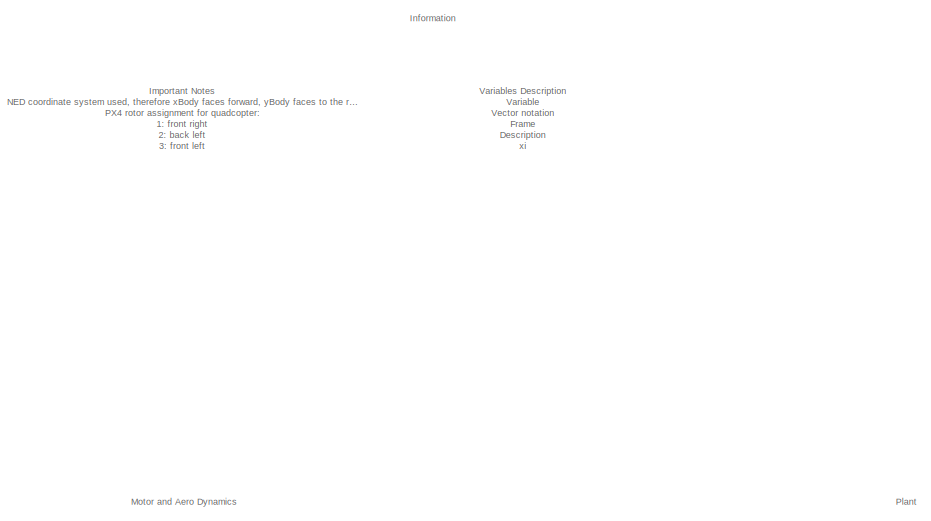
[diagram: root canvas - part 1/5, top right region]
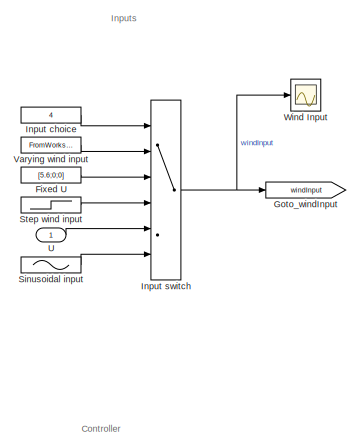
[diagram: root canvas - part 2/5, top left region]
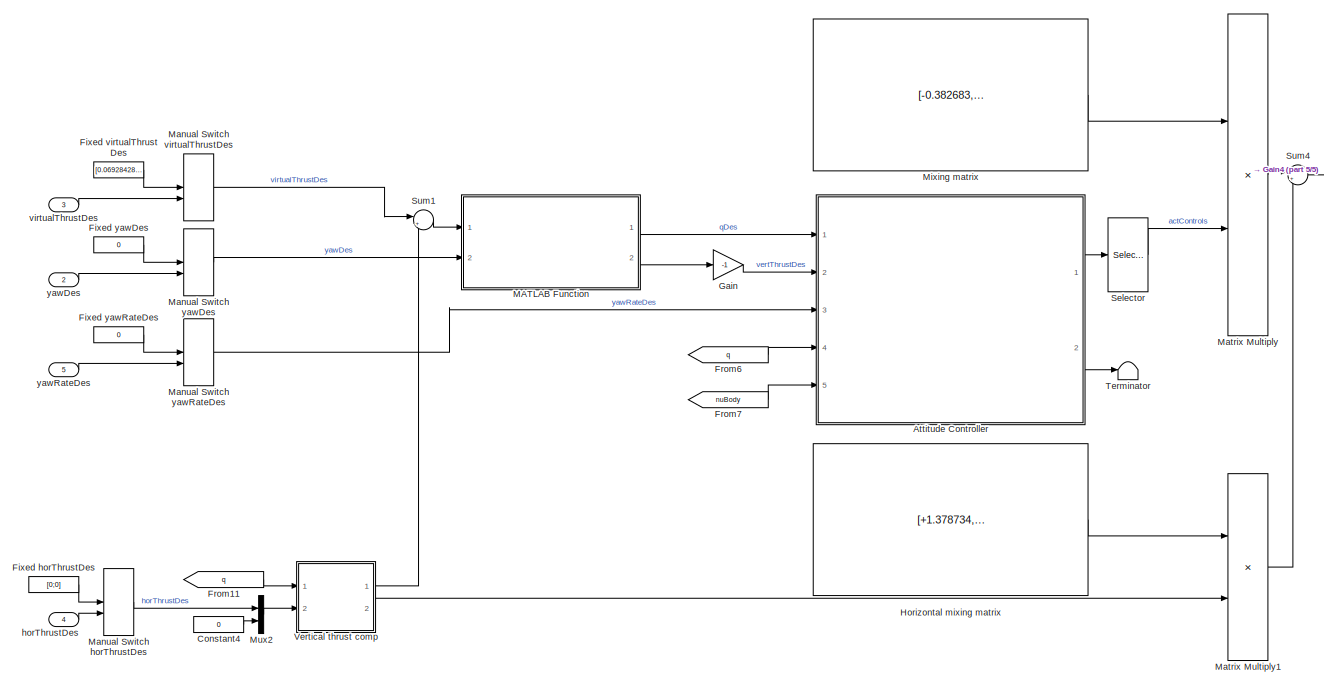
[diagram: root canvas - part 3/5, bottom left region]
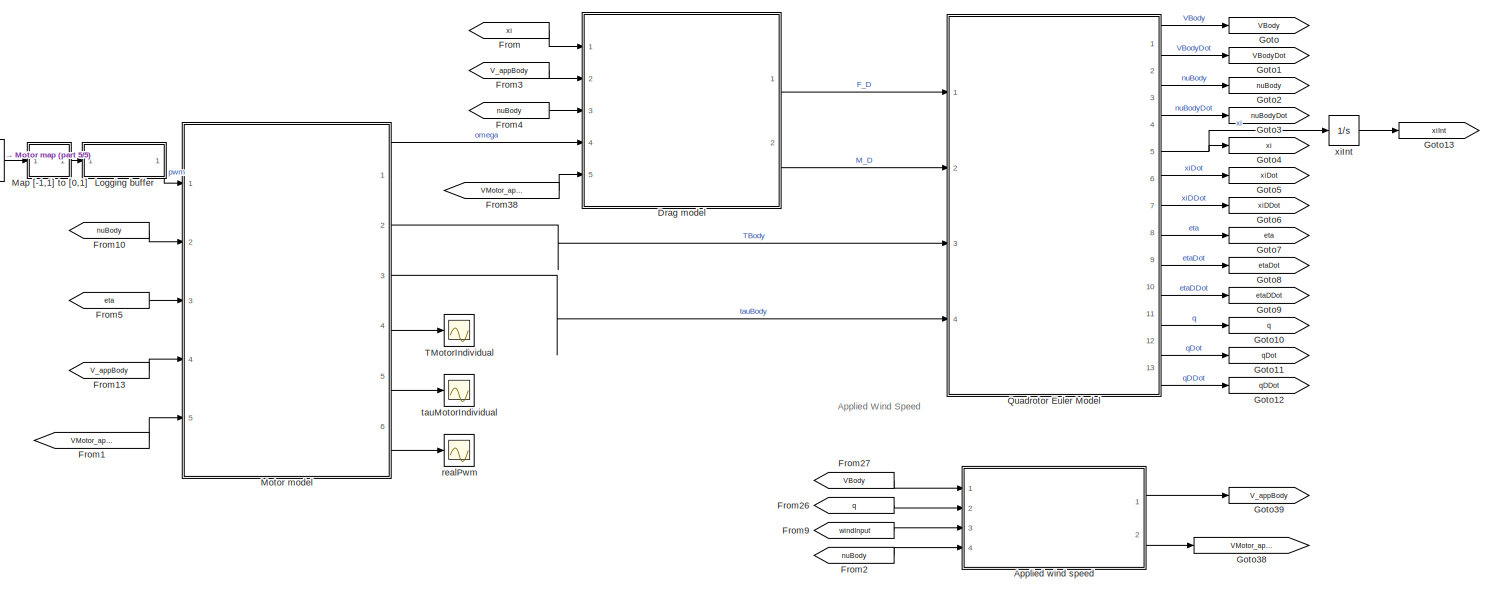
[diagram: root canvas - part 4/5, bottom right region]
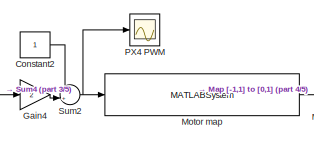
[diagram: root canvas - part 5/5, central region]
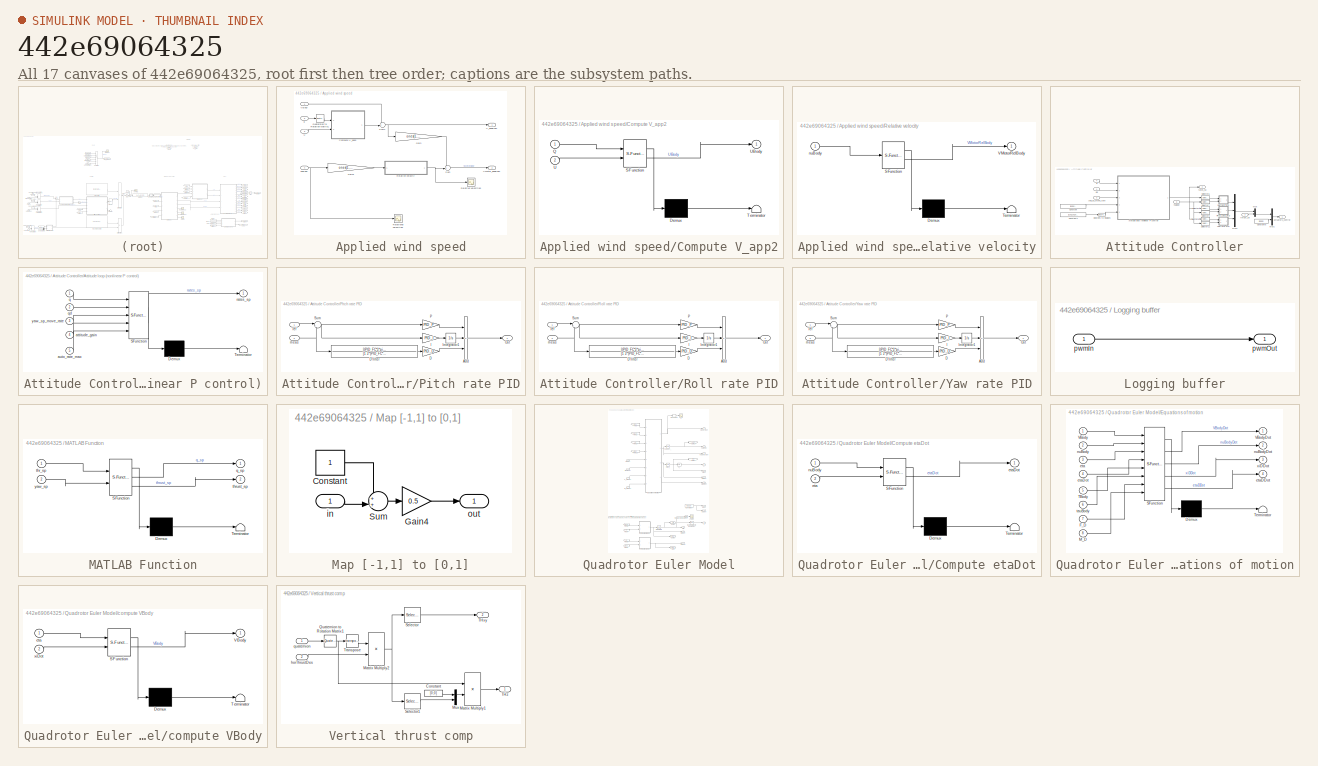
[diagram: thumbnail index - all 17 canvases of the model, root first then tree order]
MODEL slx_442e69064325
KIND model
CONFIG AbsTol = auto
CONFIG EnableMultiTasking = on
CONFIG FixedStep = auto
CONFIG MaxStep = Simulation.TS_MAX
CONFIG MinStep = auto
CONFIG PreLoadFcn = % InitializeParameters;
CONFIG RelTol = 1e-3
CONFIG SampleTimeConstraint = Unconstrained
CONFIG SolverName = VariableStepAuto
CONFIG StartTime = 0.0
CONFIG StopTime = Simulation.T_END
BLOCK [SubSystem] Applied wind speed
  Ports = [4, 2]
  RequestExecContextInheritance = off
BLOCK [SubSystem] Applied wind speed/Compute V_app2
  ErrorFcn = Stateflow.Translate.translate
  PermitHierarchicalResolution = ExplicitOnly
  Ports = [2, 1]
  RequestExecContextInheritance = off
  SFBlockType = MATLAB Function
  TreatAsAtomicUnit = on
BLOCK [Demux] Applied wind speed/Compute V_app2/ Demux 
  Outputs = 1
  Ports = [1, 1]
BLOCK [S-Function] Applied wind speed/Compute V_app2/ SFunction 
  EnableBusSupport = on
  FunctionName = sf_sfun
  PortCounts = [2 2]
  Ports = [2, 2]
  SFcnIsStateOwnerBlock = off
  SFunctionDeploymentMode = off
  Tag = Stateflow S-Function 5
BLOCK [Terminator] Applied wind speed/Compute V_app2/ Terminator 
BLOCK [Inport] Applied wind speed/Compute V_app2/Q
BLOCK [Inport] Applied wind speed/Compute V_app2/U
  Port = 2
BLOCK [Outport] Applied wind speed/Compute V_app2/UBody
  VectorParamsAs1DForOutWhenUnconnected = off
BLOCK [Gain] Applied wind speed/Gain
  Gain = ones(1,Uav.N_ROTORS)
  Multiplication = Matrix(u*K)
BLOCK [Gain] Applied wind speed/Gain1
  Gain = ones(1,Uav.N_ROTORS)
  Multiplication = Matrix(u*K)
BLOCK [Reference] Applied wind speed/Quaternion to Rotation Matrix1  REF=QuaternionLibrary/Quaternion
to Rotation Matrix
  Ports = [1, 1]
  SourceBlock = QuaternionLibrary/Quaternion\nto Rotation Matrix
BLOCK [Scope] Applied wind speed/Relative velocities
  Floating = off
  NumInputPorts = 1
  Ports = [1]
  ScopeSpecificationString = Simulink.scopes.TimeScopeBlockCfg('CurrentConfiguration', extmgr.ConfigurationSet(extmgr.Configuration('Core','General UI',true),extmgr.Configuration('Core','Source UI',true),extmgr.Configuration('Sources','WiredSimulink',true,'DataLoggingVariableName','ScopeData7'),extmgr.Configuration('Visuals','Time Domain',true,'SerializedDisplays',{struct('MinYLimReal','-0.10082','MaxYLimReal','0.10082','YLab...<+1971ch>
BLOCK [SubSystem] Applied wind speed/Relative velocity
  ErrorFcn = Stateflow.Translate.translate
  PermitHierarchicalResolution = ExplicitOnly
  Ports = [1, 1]
  RequestExecContextInheritance = off
  SFBlockType = MATLAB Function
  TreatAsAtomicUnit = on
BLOCK [Demux] Applied wind speed/Relative velocity/ Demux 
  Outputs = 1
  Ports = [1, 1]
BLOCK [S-Function] Applied wind speed/Relative velocity/ SFunction 
  EnableBusSupport = on
  FunctionName = sf_sfun
  Parameters = Uav
  PortCounts = [1 2]
  Ports = [1, 2]
  SFcnIsStateOwnerBlock = off
  SFunctionDeploymentMode = off
  Tag = Stateflow S-Function 4
BLOCK [Terminator] Applied wind speed/Relative velocity/ Terminator 
BLOCK [Outport] Applied wind speed/Relative velocity/VMotorRelBody
  VectorParamsAs1DForOutWhenUnconnected = off
BLOCK [Inport] Applied wind speed/Relative velocity/nuBody
BLOCK [Scope] Applied wind speed/Rotational velocities
  Floating = off
  NumInputPorts = 1
  Ports = [1]
  ScopeSpecificationString = Simulink.scopes.TimeScopeBlockCfg('CurrentConfiguration', extmgr.ConfigurationSet(extmgr.Configuration('Core','General UI',true),extmgr.Configuration('Core','Source UI',true),extmgr.Configuration('Sources','WiredSimulink',true,'DataLoggingVariableName','ScopeData8'),extmgr.Configuration('Visuals','Time Domain',true,'SerializedDisplays',{struct('MinYLimReal','-0.22625','MaxYLimReal','0.41313','YLab...<+1461ch>
BLOCK [Sum] Applied wind speed/Sum
  Inputs = ++|
  Ports = [2, 1]
BLOCK [Sum] Applied wind speed/Sum1
  Inputs = ++|
  Ports = [2, 1]
BLOCK [Inport] Applied wind speed/U
  Port = 3
  Unit = m/s
BLOCK [Inport] Applied wind speed/VBody
  Unit = m/s
BLOCK [Outport] Applied wind speed/VMotor_appBody
  Port = 2
  PortDimensions = [3,Uav.N_ROTORS]
  Unit = m/s
  VectorParamsAs1DForOutWhenUnconnected = off
BLOCK [Outport] Applied wind speed/V_appBody
  Unit = m/s
  VectorParamsAs1DForOutWhenUnconnected = off
BLOCK [Inport] Applied wind speed/nuBody
  Port = 4
  Unit = rad/s
BLOCK [Inport] Applied wind speed/q
  Port = 2
BLOCK [SubSystem] Attitude Controller
  Ports = [5, 2]
  RequestExecContextInheritance = off
BLOCK [SubSystem] Attitude Controller/Attitude loop (nonlinear P control)
  ErrorFcn = Stateflow.Translate.translate
  PermitHierarchicalResolution = ExplicitOnly
  Ports = [5, 1]
  RequestExecContextInheritance = off
  SFBlockType = MATLAB Function
  TreatAsAtomicUnit = on
BLOCK [Demux] Attitude Controller/Attitude loop (nonlinear P control)/ Demux 
  Outputs = 1
  Ports = [1, 1]
BLOCK [S-Function] Attitude Controller/Attitude loop (nonlinear P control)/ SFunction 
  EnableBusSupport = on
  FunctionName = sf_sfun
  PortCounts = [5 2]
  Ports = [5, 2]
  SFcnIsStateOwnerBlock = off
  SFunctionDeploymentMode = off
  Tag = Stateflow S-Function 6
BLOCK [Terminator] Attitude Controller/Attitude loop (nonlinear P control)/ Terminator 
BLOCK [Inport] Attitude Controller/Attitude loop (nonlinear P control)/attitude_gain
  Port = 4
BLOCK [Inport] Attitude Controller/Attitude loop (nonlinear P control)/auto_rate_max
  Port = 5
BLOCK [Inport] Attitude Controller/Attitude loop (nonlinear P control)/q
BLOCK [Inport] Attitude Controller/Attitude loop (nonlinear P control)/qd
  Port = 2
BLOCK [Outport] Attitude Controller/Attitude loop (nonlinear P control)/rates_sp
  VectorParamsAs1DForOutWhenUnconnected = off
BLOCK [Inport] Attitude Controller/Attitude loop (nonlinear P control)/yaw_sp_move_rate
  Port = 3
BLOCK [Constant] Attitude Controller/Constant
  Value = [ 6.5; 6.5; 2.8]
BLOCK [Constant] Attitude Controller/Constant1
  Value = [220;220;200]
BLOCK [Constant] Attitude Controller/Constant5
  Value = [0;0;0;0]
BLOCK [Reference] Attitude Controller/Degrees to Radians  REF=simulink_extras/Transformations/Degrees to
Radians
  Ports = [1, 1]
  SourceBlock = simulink_extras/Transformations/Degrees to\nRadians
  SourceProductBaseCode = SL
  SourceType = DegreesToRadians
BLOCK [Mux] Attitude Controller/Mux
  DisplayOption = bar
  Inputs = 2
  Ports = [2, 1]
BLOCK [Mux] Attitude Controller/Mux1
  DisplayOption = bar
  Inputs = 2
  Ports = [2, 1]
BLOCK [Mux] Attitude Controller/Mux2
  DisplayOption = bar
  Inputs = 3
  Ports = [3, 1]
BLOCK [SubSystem] Attitude Controller/Pitch rate PID
  Ports = [2, 1]
  RequestExecContextInheritance = off
BLOCK [Sum] Attitude Controller/Pitch rate PID/Add
  IconShape = rectangular
  Inputs = ++-
  Ports = [3, 1]
BLOCK [Gain] Attitude Controller/Pitch rate PID/D
  Gain = PID_D
BLOCK [TransferFcn] Attitude Controller/Pitch rate PID/D filter
  ContinuousStateAttributes = PID_D_STATENAME
  Denominator = [1 2*(PID_FC*2*pi)*0.68  (PID_FC*2*pi)^2]
  Numerator = [(PID_FC*2*pi)^2 0]
BLOCK [Gain] Attitude Controller/Pitch rate PID/I
  Gain = PID_I
BLOCK [Integrator] Attitude Controller/Pitch rate PID/Integrator1
  ContinuousStateAttributes = PID_I_STATENAME
  LimitOutput = on
  LowerSaturationLimit = -0.3
  Ports = [1, 1]
  UpperSaturationLimit = 0.3
BLOCK [Outport] Attitude Controller/Pitch rate PID/Out
  VectorParamsAs1DForOutWhenUnconnected = off
BLOCK [Gain] Attitude Controller/Pitch rate PID/P
  Gain = PID_P
BLOCK [Sum] Attitude Controller/Pitch rate PID/Sum
  Inputs = |+-
  Ports = [2, 1]
BLOCK [Inport] Attitude Controller/Pitch rate PID/meas
  Port = 2
BLOCK [Inport] Attitude Controller/Pitch rate PID/ref
BLOCK [SubSystem] Attitude Controller/Roll rate PID
  Ports = [2, 1]
  RequestExecContextInheritance = off
BLOCK [Sum] Attitude Controller/Roll rate PID/Add
  IconShape = rectangular
  Inputs = ++-
  Ports = [3, 1]
BLOCK [Gain] Attitude Controller/Roll rate PID/D
  Gain = PID_D
BLOCK [TransferFcn] Attitude Controller/Roll rate PID/D filter
  ContinuousStateAttributes = PID_D_STATENAME
  Denominator = [1 2*(PID_FC*2*pi)*0.68  (PID_FC*2*pi)^2]
  Numerator = [(PID_FC*2*pi)^2 0]
BLOCK [Gain] Attitude Controller/Roll rate PID/I
  Gain = PID_I
BLOCK [Integrator] Attitude Controller/Roll rate PID/Integrator1
  ContinuousStateAttributes = PID_I_STATENAME
  LimitOutput = on
  LowerSaturationLimit = -0.3
  Ports = [1, 1]
  UpperSaturationLimit = 0.3
BLOCK [Outport] Attitude Controller/Roll rate PID/Out
  VectorParamsAs1DForOutWhenUnconnected = off
BLOCK [Gain] Attitude Controller/Roll rate PID/P
  Gain = PID_P
BLOCK [Sum] Attitude Controller/Roll rate PID/Sum
  Inputs = |+-
  Ports = [2, 1]
BLOCK [Inport] Attitude Controller/Roll rate PID/meas
  Port = 2
BLOCK [Inport] Attitude Controller/Roll rate PID/ref
BLOCK [Selector] Attitude Controller/Selector10
  IndexOptions = Index vector (dialog)
  Indices = 3
  InputPortWidth = 3
  OutputSizes = 1
  Ports = [1, 1]
BLOCK [Selector] Attitude Controller/Selector11
  IndexOptions = Index vector (dialog)
  Indices = 3
  InputPortWidth = 3
  OutputSizes = 1
  Ports = [1, 1]
BLOCK [Selector] Attitude Controller/Selector6
  IndexOptions = Index vector (dialog)
  Indices = 1
  InputPortWidth = 3
  OutputSizes = 1
  Ports = [1, 1]
BLOCK [Selector] Attitude Controller/Selector7
  IndexOptions = Index vector (dialog)
  Indices = 1
  InputPortWidth = 3
  OutputSizes = 1
  Ports = [1, 1]
BLOCK [Selector] Attitude Controller/Selector8
  IndexOptions = Index vector (dialog)
  Indices = 2
  InputPortWidth = 3
  OutputSizes = 1
  Ports = [1, 1]
BLOCK [Selector] Attitude Controller/Selector9
  IndexOptions = Index vector (dialog)
  Indices = 2
  InputPortWidth = 3
  OutputSizes = 1
  Ports = [1, 1]
BLOCK [SubSystem] Attitude Controller/Yaw rate PID
  Ports = [2, 1]
  RequestExecContextInheritance = off
BLOCK [Sum] Attitude Controller/Yaw rate PID/Add
  IconShape = rectangular
  Inputs = ++-
  Ports = [3, 1]
BLOCK [Gain] Attitude Controller/Yaw rate PID/D
  Gain = PID_D
BLOCK [TransferFcn] Attitude Controller/Yaw rate PID/D filter
  ContinuousStateAttributes = PID_D_STATENAME
  Denominator = [1 2*(PID_FC*2*pi)*0.68  (PID_FC*2*pi)^2]
  Numerator = [(PID_FC*2*pi)^2 0]
BLOCK [Gain] Attitude Controller/Yaw rate PID/I
  Gain = PID_I
BLOCK [Integrator] Attitude Controller/Yaw rate PID/Integrator1
  ContinuousStateAttributes = PID_I_STATENAME
  LimitOutput = on
  LowerSaturationLimit = -0.3
  Ports = [1, 1]
  UpperSaturationLimit = 0.3
BLOCK [Outport] Attitude Controller/Yaw rate PID/Out
  VectorParamsAs1DForOutWhenUnconnected = off
BLOCK [Gain] Attitude Controller/Yaw rate PID/P
  Gain = PID_P
BLOCK [Sum] Attitude Controller/Yaw rate PID/Sum
  Inputs = |+-
  Ports = [2, 1]
BLOCK [Inport] Attitude Controller/Yaw rate PID/meas
  Port = 2
BLOCK [Inport] Attitude Controller/Yaw rate PID/ref
BLOCK [Outport] Attitude Controller/actuators_control
  PortDimensions = 8
  VectorParamsAs1DForOutWhenUnconnected = off
BLOCK [Inport] Attitude Controller/nuBody
  Port = 5
BLOCK [Inport] Attitude Controller/q
  Port = 4
BLOCK [Inport] Attitude Controller/qd
  PortDimensions = 4
BLOCK [Outport] Attitude Controller/rates_sp
  Port = 2
  VectorParamsAs1DForOutWhenUnconnected = off
BLOCK [Inport] Attitude Controller/thrust_sp
  Port = 2
  PortDimensions = 1
BLOCK [Inport] Attitude Controller/yaw_sp_move_rate
  Port = 3
BLOCK [Constant] Constant2
BLOCK [Constant] Constant4
  Value = 0
BLOCK [ModelReference] Drag model
  ModelNameDialog = DragModelAIAAv3
  ModelReferenceVersion = 5.2
  Ports = [5, 2]
BLOCK [Constant] Fixed U
  Value = [5.6;0;0]
BLOCK [Constant] Fixed horThrustDes
  Value = [0;0]
BLOCK [Constant] Fixed virtualThrustDes
  Value = [0.0692842822995187;0;-0.477190724393011]
BLOCK [Constant] Fixed yawDes
  Value = 0
BLOCK [Constant] Fixed yawRateDes
  Value = 0
BLOCK [From] From
  GotoTag = xi
BLOCK [From] From1
  GotoTag = VMotor_appBody
BLOCK [From] From10
  GotoTag = nuBody
BLOCK [From] From11
  GotoTag = q
BLOCK [From] From13
  GotoTag = V_appBody
BLOCK [From] From2
  GotoTag = nuBody
BLOCK [From] From26
  GotoTag = q
BLOCK [From] From27
  GotoTag = VBody
BLOCK [From] From3
  GotoTag = V_appBody
BLOCK [From] From38
  GotoTag = VMotor_appBody
BLOCK [From] From4
  GotoTag = nuBody
BLOCK [From] From5
  GotoTag = eta
BLOCK [From] From6
  GotoTag = q
BLOCK [From] From7
  GotoTag = nuBody
BLOCK [From] From9
  GotoTag = windInput
BLOCK [Gain] Gain
  Gain = -1
BLOCK [Gain] Gain4
  Gain = 2
BLOCK [Goto] Goto
  GotoTag = VBody
BLOCK [Goto] Goto1
  GotoTag = VBodyDot
BLOCK [Goto] Goto10
  GotoTag = q
BLOCK [Goto] Goto11
  GotoTag = qDot
BLOCK [Goto] Goto12
  GotoTag = qDDot
BLOCK [Goto] Goto13
  GotoTag = xiInt
BLOCK [Goto] Goto2
  GotoTag = nuBody
BLOCK [Goto] Goto3
  GotoTag = nuBodyDot
BLOCK [Goto] Goto38
  GotoTag = VMotor_appBody
BLOCK [Goto] Goto39
  GotoTag = V_appBody
BLOCK [Goto] Goto4
  GotoTag = xi
BLOCK [Goto] Goto5
  GotoTag = xiDot
BLOCK [Goto] Goto6
  GotoTag = xiDDot
BLOCK [Goto] Goto7
  GotoTag = eta
BLOCK [Goto] Goto8
  GotoTag = etaDot
BLOCK [Goto] Goto9
  GotoTag = etaDDot
BLOCK [Goto] Goto_windInput
  GotoTag = windInput
BLOCK [Constant] Horizontal mixing matrix
  Value = [+1.378734, -3.328559;\n -1.378734, +3.328559;\n -3.328559, +1.378734;\n -1.378734, -3.328559;\n +1.378734, +3.328559;\n +3.328559, -1.378734;\n -3.328559, -1.378734;\n +3.328559, +1.378734]
BLOCK [Constant] Input choice
  Value = 4
BLOCK [MultiPortSwitch] Input switch
  InputSameDT = off
  Inputs = 5
  Ports = [6, 1]
  SaturateOnIntegerOverflow = off
BLOCK [SubSystem] Logging buffer
  Ports = [1, 1]
  RequestExecContextInheritance = off
BLOCK [Inport] Logging buffer/pwmIn
BLOCK [Outport] Logging buffer/pwmOut
  VectorParamsAs1DForOutWhenUnconnected = off
BLOCK [SubSystem] MATLAB Function
  ErrorFcn = Stateflow.Translate.translate
  PermitHierarchicalResolution = ExplicitOnly
  Ports = [2, 2]
  RequestExecContextInheritance = off
  SFBlockType = MATLAB Function
  TreatAsAtomicUnit = on
BLOCK [Demux] MATLAB Function/ Demux 
  Outputs = 1
  Ports = [1, 1]
BLOCK [S-Function] MATLAB Function/ SFunction 
  EnableBusSupport = on
  FunctionName = sf_sfun
  PortCounts = [2 3]
  Ports = [2, 3]
  SFcnIsStateOwnerBlock = off
  SFunctionDeploymentMode = off
  Tag = Stateflow S-Function 7
BLOCK [Terminator] MATLAB Function/ Terminator 
BLOCK [Outport] MATLAB Function/q_sp
  VectorParamsAs1DForOutWhenUnconnected = off
BLOCK [Inport] MATLAB Function/thr_sp
BLOCK [Outport] MATLAB Function/thrust_sp
  Port = 2
  VectorParamsAs1DForOutWhenUnconnected = off
BLOCK [Inport] MATLAB Function/yaw_sp
  Port = 2
BLOCK [ManualSwitch] Manual Switch horThrustDes
  CurrentSetting = 0
BLOCK [ManualSwitch] Manual Switch virtualThrustDes
  CurrentSetting = 0
  NameLocation = top
BLOCK [ManualSwitch] Manual Switch yawDes
  CurrentSetting = 0
BLOCK [ManualSwitch] Manual Switch yawRateDes
  CurrentSetting = 0
BLOCK [SubSystem] Map [-1,1] to [0,1]
  Ports = [1, 1]
  RequestExecContextInheritance = off
BLOCK [Constant] Map [-1,1] to [0,1]/Constant
BLOCK [Gain] Map [-1,1] to [0,1]/Gain4
  Gain = 0.5
BLOCK [Sum] Map [-1,1] to [0,1]/Sum
  Inputs = ++|
  Ports = [2, 1]
BLOCK [Inport] Map [-1,1] to [0,1]/in
BLOCK [Outport] Map [-1,1] to [0,1]/out
  VectorParamsAs1DForOutWhenUnconnected = off
BLOCK [Product] Matrix Multiply
  Multiplication = Matrix(*)
  Ports = [2, 1]
BLOCK [Product] Matrix Multiply1
  Multiplication = Matrix(*)
  Ports = [2, 1]
BLOCK [Constant] Mixing matrix
  Value = [-0.382683,  0.923880, -1.000000,  1.000000 ;\n  0.382683, -0.923880, -1.000000,  1.000000 ;\n -0.923880,  0.382683,  1.000000,  1.000000 ;\n -0.382683, -0.923880,  1.000000,  1.000000 ;\n  0.382683,  0.923880,  1.000000,  1.000000 ;\n  0.923880, -0.382683,  1.000000,  1.000000 ;\n  0.923880,  0.382683, -1.000000,  1.000000 ;\n -0.923880, -0.382683, -1.000000,  1.000000 ]
BLOCK [MATLABSystem] Motor map
  MaskDisplay = disp(['MOTOR' char(10) 'MAP' char(10) 'octa_x']);\nport_label('input',1,'px4PWM');\nport_label('output',1,'simPWM');
  MaskType = MotorMap
  Ports = [1, 1]
  SimulateUsing = Code generation
  System = MotorMap
  airframeConfig = 5
BLOCK [ModelReference] Motor model
  ModelNameDialog = MotorModelZJChen
  ModelReferenceVersion = 5.16
  Ports = [5, 6]
BLOCK [Mux] Mux2
  DisplayOption = bar
  Inputs = 2
  Ports = [2, 1]
BLOCK [Scope] PX4 PWM
  Floating = off
  NumInputPorts = 1
  Ports = [1]
  ScopeSpecificationString = Simulink.scopes.TimeScopeBlockCfg('CurrentConfiguration', extmgr.ConfigurationSet(extmgr.Configuration('Core','General UI',true),extmgr.Configuration('Core','Source UI',true),extmgr.Configuration('Sources','WiredSimulink',true,'DataLoggingVariableName','ScopeData2'),extmgr.Configuration('Visuals','Time Domain',true,'SerializedDisplays',{struct('MinYLimReal','-0.16636','MaxYLimReal','0.13253','YLab...<+1501ch>
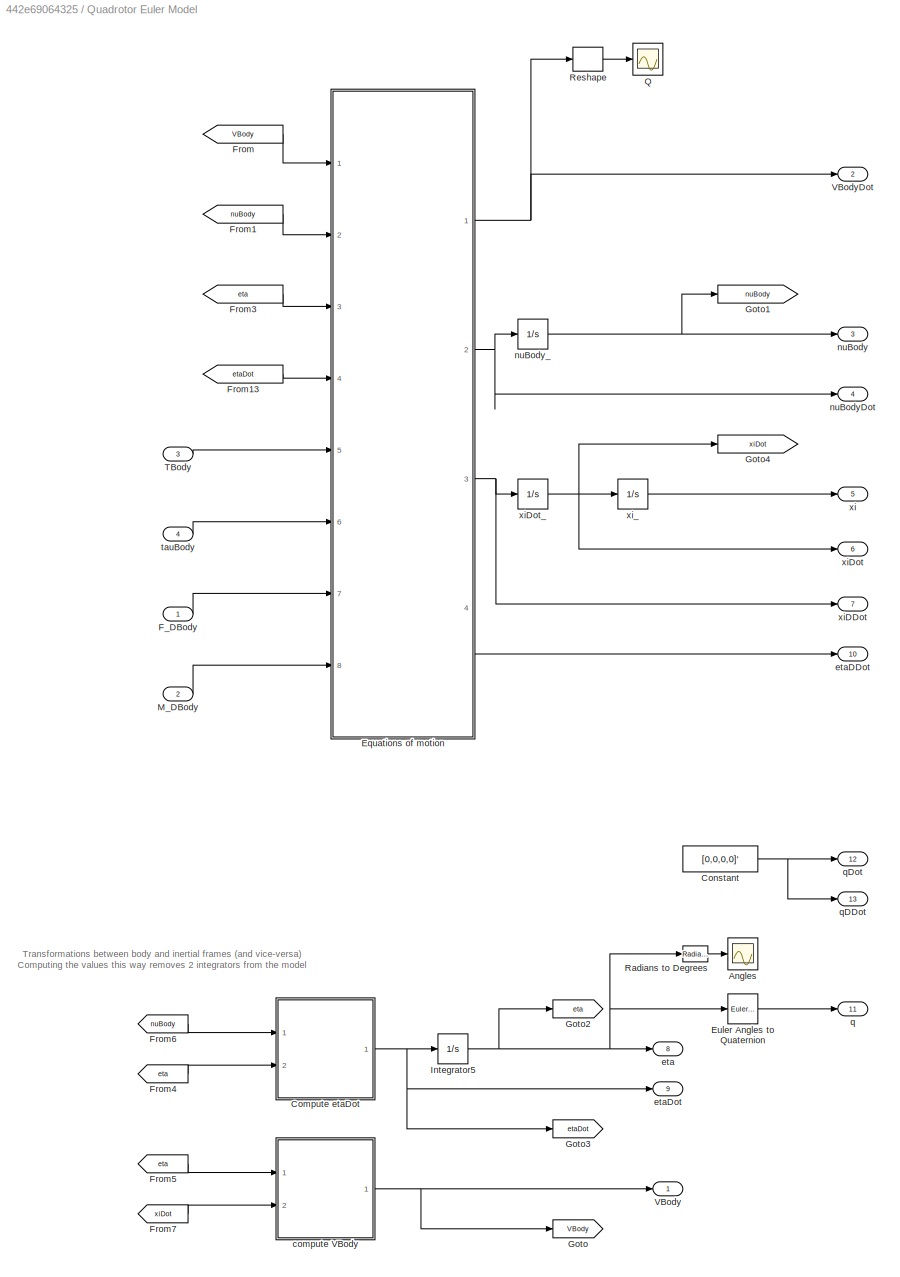
BLOCK [SubSystem] Quadrotor Euler Model
  Ports = [4, 13]
  RequestExecContextInheritance = off
BLOCK [Scope] Quadrotor Euler Model/Angles
  Floating = off
  NumInputPorts = 1
  Ports = [1]
  ScopeSpecificationString = Simulink.scopes.TimeScopeBlockCfg('CurrentConfiguration', extmgr.ConfigurationSet(extmgr.Configuration('Core','General UI',true),extmgr.Configuration('Core','Source UI',true),extmgr.Configuration('Sources','WiredSimulink',true,'DataLoggingVariableName','ScopeData1','DataLoggingLimitDataPoints',true,'DataLoggingSaveFormat','Array','DataLoggingDecimation','1','DataLoggingDecimateData',true),extmgr.C...<+1596ch>
BLOCK [SubSystem] Quadrotor Euler Model/Compute etaDot
  ErrorFcn = Stateflow.Translate.translate
  PermitHierarchicalResolution = ExplicitOnly
  Ports = [2, 1]
  RequestExecContextInheritance = off
  SFBlockType = MATLAB Function
  TreatAsAtomicUnit = on
BLOCK [Demux] Quadrotor Euler Model/Compute etaDot/ Demux 
  Outputs = 1
  Ports = [1, 1]
BLOCK [S-Function] Quadrotor Euler Model/Compute etaDot/ SFunction 
  EnableBusSupport = on
  FunctionName = sf_sfun
  PortCounts = [2 2]
  Ports = [2, 2]
  SFcnIsStateOwnerBlock = off
  SFunctionDeploymentMode = off
  Tag = Stateflow S-Function 12
BLOCK [Terminator] Quadrotor Euler Model/Compute etaDot/ Terminator 
BLOCK [Inport] Quadrotor Euler Model/Compute etaDot/eta
  Port = 2
BLOCK [Outport] Quadrotor Euler Model/Compute etaDot/etaDot
  VectorParamsAs1DForOutWhenUnconnected = off
BLOCK [Inport] Quadrotor Euler Model/Compute etaDot/nuBody
BLOCK [Constant] Quadrotor Euler Model/Constant
  Value = [0,0,0,0]'
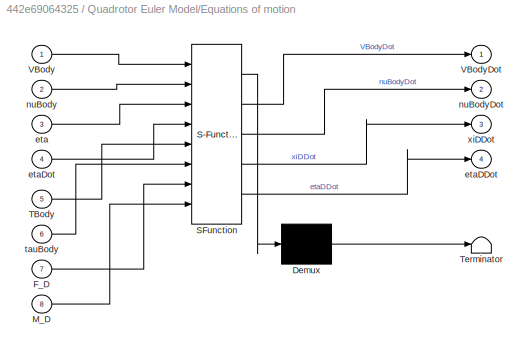
BLOCK [SubSystem] Quadrotor Euler Model/Equations of motion
  ErrorFcn = Stateflow.Translate.translate
  PermitHierarchicalResolution = ExplicitOnly
  Ports = [8, 4]
  RequestExecContextInheritance = off
  SFBlockType = MATLAB Function
  TreatAsAtomicUnit = on
BLOCK [Demux] Quadrotor Euler Model/Equations of motion/ Demux 
  Outputs = 1
  Ports = [1, 1]
BLOCK [S-Function] Quadrotor Euler Model/Equations of motion/ SFunction 
  EnableBusSupport = on
  FunctionName = sf_sfun
  Parameters = Uav
  PortCounts = [8 5]
  Ports = [8, 5]
  SFcnIsStateOwnerBlock = off
  SFunctionDeploymentMode = off
  Tag = Stateflow S-Function 1
BLOCK [Terminator] Quadrotor Euler Model/Equations of motion/ Terminator 
BLOCK [Inport] Quadrotor Euler Model/Equations of motion/F_D
  Port = 7
BLOCK [Inport] Quadrotor Euler Model/Equations of motion/M_D
  Port = 8
BLOCK [Inport] Quadrotor Euler Model/Equations of motion/TBody
  Port = 5
BLOCK [Inport] Quadrotor Euler Model/Equations of motion/VBody
BLOCK [Outport] Quadrotor Euler Model/Equations of motion/VBodyDot
  VectorParamsAs1DForOutWhenUnconnected = off
BLOCK [Inport] Quadrotor Euler Model/Equations of motion/eta
  Port = 3
BLOCK [Outport] Quadrotor Euler Model/Equations of motion/etaDDot
  Port = 4
  VectorParamsAs1DForOutWhenUnconnected = off
BLOCK [Inport] Quadrotor Euler Model/Equations of motion/etaDot
  Port = 4
BLOCK [Inport] Quadrotor Euler Model/Equations of motion/nuBody
  Port = 2
BLOCK [Outport] Quadrotor Euler Model/Equations of motion/nuBodyDot
  Port = 2
  VectorParamsAs1DForOutWhenUnconnected = off
BLOCK [Inport] Quadrotor Euler Model/Equations of motion/tauBody
  Port = 6
BLOCK [Outport] Quadrotor Euler Model/Equations of motion/xiDDot
  Port = 3
  VectorParamsAs1DForOutWhenUnconnected = off
BLOCK [Reference] Quadrotor Euler Model/Euler Angles to Quaternion  REF=QuaternionLibrary/Euler Angles
to Quaternion
  Ports = [1, 1]
  SourceBlock = QuaternionLibrary/Euler Angles\nto Quaternion
BLOCK [Inport] Quadrotor Euler Model/F_DBody
  Unit = N
BLOCK [From] Quadrotor Euler Model/From
  GotoTag = VBody
BLOCK [From] Quadrotor Euler Model/From1
  GotoTag = nuBody
BLOCK [From] Quadrotor Euler Model/From13
  GotoTag = etaDot
BLOCK [From] Quadrotor Euler Model/From3
  GotoTag = eta
BLOCK [From] Quadrotor Euler Model/From4
  GotoTag = eta
BLOCK [From] Quadrotor Euler Model/From5
  GotoTag = eta
BLOCK [From] Quadrotor Euler Model/From6
  GotoTag = nuBody
BLOCK [From] Quadrotor Euler Model/From7
  GotoTag = xiDot
BLOCK [Goto] Quadrotor Euler Model/Goto
  GotoTag = VBody
BLOCK [Goto] Quadrotor Euler Model/Goto1
  GotoTag = nuBody
BLOCK [Goto] Quadrotor Euler Model/Goto2
  GotoTag = eta
BLOCK [Goto] Quadrotor Euler Model/Goto3
  GotoTag = etaDot
BLOCK [Goto] Quadrotor Euler Model/Goto4
  GotoTag = xiDot
BLOCK [Integrator] Quadrotor Euler Model/Integrator5
  ContinuousStateAttributes = 'eta'
  InitialCondition = Initial.ETA
  Ports = [1, 1]
BLOCK [Inport] Quadrotor Euler Model/M_DBody
  Port = 2
  Unit = N*m
BLOCK [Scope] Quadrotor Euler Model/Q
  Floating = off
  NumInputPorts = 1
  Ports = [1]
  ScopeSpecificationString = Simulink.scopes.TimeScopeBlockCfg('CurrentConfiguration', extmgr.ConfigurationSet(extmgr.Configuration('Core','General UI',true),extmgr.Configuration('Core','Source UI',true),extmgr.Configuration('Sources','WiredSimulink',true,'DataLoggingVariableName','ScopeData3','DataLoggingLimitDataPoints',true,'DataLoggingSaveFormat','Array','DataLoggingDecimation','1','DataLoggingDecimateData',true),extmgr.C...<+1517ch>
BLOCK [Reference] Quadrotor Euler Model/Radians to Degrees  REF=simulink_extras/Transformations/Radians
to Degrees
  Ports = [1, 1]
  SourceBlock = simulink_extras/Transformations/Radians\nto Degrees
  SourceProductBaseCode = SL
  SourceType = RadiansToDegrees
BLOCK [Reshape] Quadrotor Euler Model/Reshape
  OutputDimensionality = Column vector (2-D)
  Ports = [1, 1]
BLOCK [Inport] Quadrotor Euler Model/TBody
  Port = 3
  Unit = N
BLOCK [Outport] Quadrotor Euler Model/VBody
  Unit = m/s
  VectorParamsAs1DForOutWhenUnconnected = off
BLOCK [Outport] Quadrotor Euler Model/VBodyDot
  Port = 2
  Unit = m/s^2
  VectorParamsAs1DForOutWhenUnconnected = off
BLOCK [SubSystem] Quadrotor Euler Model/compute VBody
  ErrorFcn = Stateflow.Translate.translate
  PermitHierarchicalResolution = ExplicitOnly
  Ports = [2, 1]
  RequestExecContextInheritance = off
  SFBlockType = MATLAB Function
  TreatAsAtomicUnit = on
BLOCK [Demux] Quadrotor Euler Model/compute VBody/ Demux 
  Outputs = 1
  Ports = [1, 1]
BLOCK [S-Function] Quadrotor Euler Model/compute VBody/ SFunction 
  EnableBusSupport = on
  FunctionName = sf_sfun
  PortCounts = [2 2]
  Ports = [2, 2]
  SFcnIsStateOwnerBlock = off
  SFunctionDeploymentMode = off
  Tag = Stateflow S-Function 14
BLOCK [Terminator] Quadrotor Euler Model/compute VBody/ Terminator 
BLOCK [Outport] Quadrotor Euler Model/compute VBody/VBody
  VectorParamsAs1DForOutWhenUnconnected = off
BLOCK [Inport] Quadrotor Euler Model/compute VBody/eta
BLOCK [Inport] Quadrotor Euler Model/compute VBody/xiDot
  Port = 2
BLOCK [Outport] Quadrotor Euler Model/eta
  Port = 8
  Unit = rad
  VectorParamsAs1DForOutWhenUnconnected = off
BLOCK [Outport] Quadrotor Euler Model/etaDDot
  Port = 10
  Unit = rad/s^2
  VectorParamsAs1DForOutWhenUnconnected = off
BLOCK [Outport] Quadrotor Euler Model/etaDot
  Port = 9
  Unit = rad/s
  VectorParamsAs1DForOutWhenUnconnected = off
BLOCK [Outport] Quadrotor Euler Model/nuBody
  Port = 3
  Unit = rad/s
  VectorParamsAs1DForOutWhenUnconnected = off
BLOCK [Outport] Quadrotor Euler Model/nuBodyDot
  Port = 4
  Unit = rad/s^2
  VectorParamsAs1DForOutWhenUnconnected = off
BLOCK [Integrator] Quadrotor Euler Model/nuBody_
  ContinuousStateAttributes = 'nuBody'
  InitialCondition = Initial.NU_BODY
  Ports = [1, 1]
BLOCK [Outport] Quadrotor Euler Model/q
  Port = 11
  VectorParamsAs1DForOutWhenUnconnected = off
BLOCK [Outport] Quadrotor Euler Model/qDDot
  Port = 13
  VectorParamsAs1DForOutWhenUnconnected = off
BLOCK [Outport] Quadrotor Euler Model/qDot
  Port = 12
  VectorParamsAs1DForOutWhenUnconnected = off
BLOCK [Inport] Quadrotor Euler Model/tauBody
  Port = 4
  Unit = N*m
BLOCK [Outport] Quadrotor Euler Model/xi
  Port = 5
  Unit = m
  VectorParamsAs1DForOutWhenUnconnected = off
BLOCK [Outport] Quadrotor Euler Model/xiDDot
  Port = 7
  Unit = m/s^2
  VectorParamsAs1DForOutWhenUnconnected = off
BLOCK [Outport] Quadrotor Euler Model/xiDot
  Port = 6
  Unit = m/s
  VectorParamsAs1DForOutWhenUnconnected = off
BLOCK [Integrator] Quadrotor Euler Model/xiDot_
  ContinuousStateAttributes = 'xiDot'
  InitialCondition = Initial.XI_DOT
  Ports = [1, 1]
BLOCK [Integrator] Quadrotor Euler Model/xi_
  ContinuousStateAttributes = 'xi'
  InitialCondition = Initial.XI
  Ports = [1, 1]
BLOCK [Selector] Selector
  IndexOptions = Index vector (dialog)
  Indices = [1:4]
  InputPortWidth = 8
  OutputSizes = 1
  Ports = [1, 1]
BLOCK [Sin] Sinusoidal input
  Amplitude = Wind.Ampl
  Bias = Wind.Bias
  Commented = on
  Frequency = Wind.Freq
  Ports = [0, 1]
  SampleTime = 0
BLOCK [Step] Step wind input
  After = [5 0 0]'
  Before = [3 0 0]'
  Commented = on
  SampleTime = 0
  Time = 5
BLOCK [Sum] Sum1
  Inputs = |++
  Ports = [2, 1]
BLOCK [Sum] Sum2
  Inputs = -+|
  Ports = [2, 1]
BLOCK [Sum] Sum4
  Inputs = |++
  Ports = [2, 1]
BLOCK [Scope] TMotorIndividual
  Floating = off
  NumInputPorts = 1
  Ports = [1]
  ScopeSpecificationString = Simulink.scopes.TimeScopeBlockCfg('CurrentConfiguration', extmgr.ConfigurationSet(extmgr.Configuration('Core','General UI',true),extmgr.Configuration('Core','Source UI',true),extmgr.Configuration('Sources','WiredSimulink',true,'DataLoggingVariableName','ScopeData2'),extmgr.Configuration('Visuals','Time Domain',true,'SerializedDisplays',{struct('MinYLimReal','-2.74786','MaxYLimReal','0.3367','YLabe...<+1875ch>
BLOCK [Terminator] Terminator
BLOCK [Inport] U
  PortDimensions = 3
BLOCK [FromWorkspace] Varying wind input
  Commented = on
  VariableName = windInput
BLOCK [SubSystem] Vertical thrust comp
  Ports = [2, 2]
  RequestExecContextInheritance = off
BLOCK [Constant] Vertical thrust comp/Constant
  Value = [0;0]
BLOCK [Product] Vertical thrust comp/Matrix Multiply1
  Multiplication = Matrix(*)
  Ports = [2, 1]
BLOCK [Product] Vertical thrust comp/Matrix Multiply2
  Multiplication = Matrix(*)
  Ports = [2, 1]
BLOCK [Mux] Vertical thrust comp/Mux
  DisplayOption = bar
  Inputs = 2
  Ports = [2, 1]
BLOCK [Reference] Vertical thrust comp/Quaternion to Rotation Matrix1  REF=QuaternionLibrary/Quaternion
to Rotation Matrix
  Ports = [1, 1]
  SourceBlock = QuaternionLibrary/Quaternion\nto Rotation Matrix
BLOCK [Selector] Vertical thrust comp/Selector
  IndexOptions = Index vector (dialog)
  Indices = [1 2]
  InputPortWidth = 3
  OutputSizes = 1
  Ports = [1, 1]
BLOCK [Selector] Vertical thrust comp/Selector1
  IndexOptions = Index vector (dialog)
  Indices = [3]
  InputPortWidth = 3
  OutputSizes = 1
  Ports = [1, 1]
BLOCK [Outport] Vertical thrust comp/THxy
  Port = 2
BLOCK [Outport] Vertical thrust comp/THz
BLOCK [Math] Vertical thrust comp/Transpose
  Operator = transpose
  Ports = [1, 1]
BLOCK [Inport] Vertical thrust comp/horThrustDes
  Port = 2
BLOCK [Inport] Vertical thrust comp/quaternion
BLOCK [Scope] Wind Input
  Floating = off
  NumInputPorts = 1
  Ports = [1]
  ScopeSpecificationString = Simulink.scopes.TimeScopeBlockCfg('CurrentConfiguration', extmgr.ConfigurationSet(extmgr.Configuration('Core','General UI',true),extmgr.Configuration('Core','Source UI',true),extmgr.Configuration('Sources','WiredSimulink',true,'DataLoggingVariableName','ScopeData1'),extmgr.Configuration('Visuals','Time Domain',true,'SerializedDisplays',{struct('MinYLimReal','-0.43231','MaxYLimReal','3.89075','YLab...<+1471ch>
BLOCK [Inport] horThrustDes
  Port = 4
  PortDimensions = 2
BLOCK [Scope] realPwm
  Floating = off
  NumInputPorts = 1
  Ports = [1]
  ScopeSpecificationString = Simulink.scopes.TimeScopeBlockCfg('CurrentConfiguration', extmgr.ConfigurationSet(extmgr.Configuration('Core','General UI',true),extmgr.Configuration('Core','Source UI',true),extmgr.Configuration('Sources','WiredSimulink',true,'DataLoggingVariableName','ScopeData2'),extmgr.Configuration('Visuals','Time Domain',true,'SerializedDisplays',{struct('MinYLimReal','875.00000','MaxYLimReal','2125.00000','...<+1519ch>
BLOCK [Scope] tauMotorIndividual
  Floating = off
  NumInputPorts = 1
  Ports = [1]
  ScopeSpecificationString = Simulink.scopes.TimeScopeBlockCfg('CurrentConfiguration', extmgr.ConfigurationSet(extmgr.Configuration('Core','General UI',true),extmgr.Configuration('Core','Source UI',true),extmgr.Configuration('Sources','WiredSimulink',true,'DataLoggingVariableName','ScopeData1'),extmgr.Configuration('Visuals','Time Domain',true,'SerializedDisplays',{struct('MinYLimReal','-0.43698','MaxYLimReal','0.43698','YLab...<+1877ch>
BLOCK [Inport] virtualThrustDes
  Port = 3
  PortDimensions = 3
BLOCK [Integrator] xiInt
  Commented = on
  ContinuousStateAttributes = 'xiInt'
  Ports = [1, 1]
BLOCK [Inport] yawDes
  Port = 2
  PortDimensions = 1
BLOCK [Inport] yawRateDes
  Port = 5
  PortDimensions = 1
ANNOTATION (root): Important Notes NED coordinate system used, therefore xBody faces forward, yBody faces to the right and zBody faces down. PX4 rotor assignment for quadcopter: 1: front right 2: back left 3: front left 4: back right Airframe reference available at: https://dev.px4.io/en/airframes/airframe_reference.html
ANNOTATION (root): Variables Description Variable Vector notation Frame Description xi [x y z] World Position eta [phi theta psi] World Roll pitch yaw orientation nuBody [p q r] Body Angular velocity q [q1 q2 q3 q4] World Quaternion orientation Uav.BETA [beta1 ... betaN] Body Angle to motor (CCW)
ANNOTATION (root): Controller
ANNOTATION (root): Inputs
ANNOTATION (root): Information
ANNOTATION (root): Motor and Aero Dynamics
ANNOTATION (root): Applied Wind Speed
ANNOTATION (root): Plant
ANNOTATION Quadrotor Euler Model: Transformations between body and inertial frames (and vice-versa) Computing the values this way removes 2 integrators from the model
LINE Applied wind speed/Compute V_app2:1 -> Applied wind speed/Sum1:2
LINE Applied wind speed/Gain1:1 -> Applied wind speed/Relative velocity:1
LINE Applied wind speed/Gain:1 -> Applied wind speed/Sum:1
LINE Applied wind speed/Quaternion to Rotation Matrix1:1 -> Applied wind speed/Compute V_app2:1
NET Applied wind speed/Relative velocity:1 -> Applied wind speed/Relative velocities:1, Applied wind speed/Sum:2
NET Applied wind speed/Sum1:1 -> Applied wind speed/Gain:1, Applied wind speed/V_appBody:1
LINE Applied wind speed/Sum:1 -> Applied wind speed/VMotor_appBody:1
LINE Applied wind speed/U:1 -> Applied wind speed/Compute V_app2:2
LINE Applied wind speed/VBody:1 -> Applied wind speed/Sum1:1
NET Applied wind speed/nuBody:1 -> Applied wind speed/Gain1:1, Applied wind speed/Rotational velocities:1
LINE Applied wind speed/q:1 -> Applied wind speed/Quaternion to Rotation Matrix1:1
LINE Applied wind speed:1 -> Goto39:1
LINE Applied wind speed:2 -> Goto38:1
NET Attitude Controller/Attitude loop (nonlinear P control):1 -> Attitude Controller/Selector10:1, Attitude Controller/Selector6:1, Attitude Controller/Selector8:1, Attitude Controller/rates_sp:1
LINE Attitude Controller/Constant1:1 -> Attitude Controller/Degrees to Radians:1
LINE Attitude Controller/Constant5:1 -> Attitude Controller/Mux1:2
LINE Attitude Controller/Constant:1 -> Attitude Controller/Attitude loop (nonlinear P control):4
LINE Attitude Controller/Degrees to Radians:1 -> Attitude Controller/Attitude loop (nonlinear P control):5
LINE Attitude Controller/Mux1:1 -> Attitude Controller/actuators_control:1
LINE Attitude Controller/Mux2:1 -> Attitude Controller/Mux:1
LINE Attitude Controller/Mux:1 -> Attitude Controller/Mux1:1
LINE Attitude Controller/Pitch rate PID/Add:1 -> Attitude Controller/Pitch rate PID/Out:1
LINE Attitude Controller/Pitch rate PID/D filter:1 -> Attitude Controller/Pitch rate PID/D:1
LINE Attitude Controller/Pitch rate PID/D:1 -> Attitude Controller/Pitch rate PID/Add:3
LINE Attitude Controller/Pitch rate PID/I:1 -> Attitude Controller/Pitch rate PID/Integrator1:1
LINE Attitude Controller/Pitch rate PID/Integrator1:1 -> Attitude Controller/Pitch rate PID/Add:2
LINE Attitude Controller/Pitch rate PID/P:1 -> Attitude Controller/Pitch rate PID/Add:1
NET Attitude Controller/Pitch rate PID/Sum:1 -> Attitude Controller/Pitch rate PID/I:1, Attitude Controller/Pitch rate PID/P:1
NET Attitude Controller/Pitch rate PID/meas:1 -> Attitude Controller/Pitch rate PID/D filter:1, Attitude Controller/Pitch rate PID/Sum:2
LINE Attitude Controller/Pitch rate PID/ref:1 -> Attitude Controller/Pitch rate PID/Sum:1
LINE Attitude Controller/Pitch rate PID:1 -> Attitude Controller/Mux2:2
LINE Attitude Controller/Roll rate PID/Add:1 -> Attitude Controller/Roll rate PID/Out:1
LINE Attitude Controller/Roll rate PID/D filter:1 -> Attitude Controller/Roll rate PID/D:1
LINE Attitude Controller/Roll rate PID/D:1 -> Attitude Controller/Roll rate PID/Add:3
LINE Attitude Controller/Roll rate PID/I:1 -> Attitude Controller/Roll rate PID/Integrator1:1
LINE Attitude Controller/Roll rate PID/Integrator1:1 -> Attitude Controller/Roll rate PID/Add:2
LINE Attitude Controller/Roll rate PID/P:1 -> Attitude Controller/Roll rate PID/Add:1
NET Attitude Controller/Roll rate PID/Sum:1 -> Attitude Controller/Roll rate PID/I:1, Attitude Controller/Roll rate PID/P:1
NET Attitude Controller/Roll rate PID/meas:1 -> Attitude Controller/Roll rate PID/D filter:1, Attitude Controller/Roll rate PID/Sum:2
LINE Attitude Controller/Roll rate PID/ref:1 -> Attitude Controller/Roll rate PID/Sum:1
LINE Attitude Controller/Roll rate PID:1 -> Attitude Controller/Mux2:1
LINE Attitude Controller/Selector10:1 -> Attitude Controller/Yaw rate PID:1
LINE Attitude Controller/Selector11:1 -> Attitude Controller/Yaw rate PID:2
LINE Attitude Controller/Selector6:1 -> Attitude Controller/Roll rate PID:1
LINE Attitude Controller/Selector7:1 -> Attitude Controller/Roll rate PID:2
LINE Attitude Controller/Selector8:1 -> Attitude Controller/Pitch rate PID:1
LINE Attitude Controller/Selector9:1 -> Attitude Controller/Pitch rate PID:2
LINE Attitude Controller/Yaw rate PID/Add:1 -> Attitude Controller/Yaw rate PID/Out:1
LINE Attitude Controller/Yaw rate PID/D filter:1 -> Attitude Controller/Yaw rate PID/D:1
LINE Attitude Controller/Yaw rate PID/D:1 -> Attitude Controller/Yaw rate PID/Add:3
LINE Attitude Controller/Yaw rate PID/I:1 -> Attitude Controller/Yaw rate PID/Integrator1:1
LINE Attitude Controller/Yaw rate PID/Integrator1:1 -> Attitude Controller/Yaw rate PID/Add:2
LINE Attitude Controller/Yaw rate PID/P:1 -> Attitude Controller/Yaw rate PID/Add:1
NET Attitude Controller/Yaw rate PID/Sum:1 -> Attitude Controller/Yaw rate PID/I:1, Attitude Controller/Yaw rate PID/P:1
NET Attitude Controller/Yaw rate PID/meas:1 -> Attitude Controller/Yaw rate PID/D filter:1, Attitude Controller/Yaw rate PID/Sum:2
LINE Attitude Controller/Yaw rate PID/ref:1 -> Attitude Controller/Yaw rate PID/Sum:1
LINE Attitude Controller/Yaw rate PID:1 -> Attitude Controller/Mux2:3
NET Attitude Controller/nuBody:1 -> Attitude Controller/Selector11:1, Attitude Controller/Selector7:1, Attitude Controller/Selector9:1
LINE Attitude Controller/q:1 -> Attitude Controller/Attitude loop (nonlinear P control):1
LINE Attitude Controller/qd:1 -> Attitude Controller/Attitude loop (nonlinear P control):2
LINE Attitude Controller/thrust_sp:1 -> Attitude Controller/Mux:2
LINE Attitude Controller/yaw_sp_move_rate:1 -> Attitude Controller/Attitude loop (nonlinear P control):3
LINE Attitude Controller:1 -> Selector:1
LINE Attitude Controller:2 -> Terminator:1
LINE Constant2:1 -> Sum2:1
LINE Constant4:1 -> Mux2:2
LINE Drag model:1 -> Quadrotor Euler Model:1
LINE Drag model:2 -> Quadrotor Euler Model:2
LINE Fixed U:1 -> Input switch:3
LINE Fixed horThrustDes:1 -> Manual Switch horThrustDes:1
LINE Fixed virtualThrustDes:1 -> Manual Switch virtualThrustDes:1
LINE Fixed yawDes:1 -> Manual Switch yawDes:1
LINE Fixed yawRateDes:1 -> Manual Switch yawRateDes:1
LINE From10:1 -> Motor model:2
LINE From11:1 -> Vertical thrust comp:1
LINE From13:1 -> Motor model:4
LINE From1:1 -> Motor model:5
LINE From26:1 -> Applied wind speed:2
LINE From27:1 -> Applied wind speed:1
LINE From2:1 -> Applied wind speed:4
LINE From38:1 -> Drag model:5
LINE From3:1 -> Drag model:2
LINE From4:1 -> Drag model:3
LINE From5:1 -> Motor model:3
LINE From6:1 -> Attitude Controller:4
LINE From7:1 -> Attitude Controller:5
LINE From9:1 -> Applied wind speed:3
LINE From:1 -> Drag model:1
LINE Gain4:1 -> Sum2:2
LINE Gain:1 -> Attitude Controller:2
LINE Horizontal mixing matrix:1 -> Matrix Multiply1:1
LINE Input choice:1 -> Input switch:1
NET Input switch:1 -> Goto_windInput:1, Wind Input:1
LINE Logging buffer/pwmIn:1 -> Logging buffer/pwmOut:1
LINE Logging buffer:1 -> Motor model:1
LINE MATLAB Function:1 -> Attitude Controller:1
LINE MATLAB Function:2 -> Gain:1
LINE Manual Switch horThrustDes:1 -> Mux2:1
LINE Manual Switch virtualThrustDes:1 -> Sum1:1
LINE Manual Switch yawDes:1 -> MATLAB Function:2
LINE Manual Switch yawRateDes:1 -> Attitude Controller:3
LINE Map [-1,1] to [0,1]/Constant:1 -> Map [-1,1] to [0,1]/Sum:1
LINE Map [-1,1] to [0,1]/Gain4:1 -> Map [-1,1] to [0,1]/out:1
LINE Map [-1,1] to [0,1]/Sum:1 -> Map [-1,1] to [0,1]/Gain4:1
LINE Map [-1,1] to [0,1]/in:1 -> Map [-1,1] to [0,1]/Sum:2
LINE Map [-1,1] to [0,1]:1 -> Logging buffer:1
LINE Matrix Multiply1:1 -> Sum4:2
LINE Matrix Multiply:1 -> Sum4:1
LINE Mixing matrix:1 -> Matrix Multiply:1
LINE Motor map:1 -> Map [-1,1] to [0,1]:1
LINE Motor model:1 -> Drag model:4
LINE Motor model:2 -> Quadrotor Euler Model:3
LINE Motor model:3 -> Quadrotor Euler Model:4
LINE Motor model:4 -> TMotorIndividual:1
LINE Motor model:5 -> tauMotorIndividual:1
LINE Motor model:6 -> realPwm:1
LINE Mux2:1 -> Vertical thrust comp:2
NET Quadrotor Euler Model/Compute etaDot:1 -> Quadrotor Euler Model/Goto3:1, Quadrotor Euler Model/Integrator5:1, Quadrotor Euler Model/etaDot:1
NET Quadrotor Euler Model/Constant:1 -> Quadrotor Euler Model/qDDot:1, Quadrotor Euler Model/qDot:1
NET Quadrotor Euler Model/Equations of motion:1 -> Quadrotor Euler Model/Reshape:1, Quadrotor Euler Model/VBodyDot:1
NET Quadrotor Euler Model/Equations of motion:2 -> Quadrotor Euler Model/nuBodyDot:1, Quadrotor Euler Model/nuBody_:1
NET Quadrotor Euler Model/Equations of motion:3 -> Quadrotor Euler Model/xiDDot:1, Quadrotor Euler Model/xiDot_:1
LINE Quadrotor Euler Model/Equations of motion:4 -> Quadrotor Euler Model/etaDDot:1
LINE Quadrotor Euler Model/Euler Angles to Quaternion:1 -> Quadrotor Euler Model/q:1
LINE Quadrotor Euler Model/F_DBody:1 -> Quadrotor Euler Model/Equations of motion:7
LINE Quadrotor Euler Model/From13:1 -> Quadrotor Euler Model/Equations of motion:4
LINE Quadrotor Euler Model/From1:1 -> Quadrotor Euler Model/Equations of motion:2
LINE Quadrotor Euler Model/From3:1 -> Quadrotor Euler Model/Equations of motion:3
LINE Quadrotor Euler Model/From4:1 -> Quadrotor Euler Model/Compute etaDot:2
LINE Quadrotor Euler Model/From5:1 -> Quadrotor Euler Model/compute VBody:1
LINE Quadrotor Euler Model/From6:1 -> Quadrotor Euler Model/Compute etaDot:1
LINE Quadrotor Euler Model/From7:1 -> Quadrotor Euler Model/compute VBody:2
LINE Quadrotor Euler Model/From:1 -> Quadrotor Euler Model/Equations of motion:1
NET Quadrotor Euler Model/Integrator5:1 -> Quadrotor Euler Model/Euler Angles to Quaternion:1, Quadrotor Euler Model/Goto2:1, Quadrotor Euler Model/Radians to Degrees:1, Quadrotor Euler Model/eta:1
LINE Quadrotor Euler Model/M_DBody:1 -> Quadrotor Euler Model/Equations of motion:8
LINE Quadrotor Euler Model/Radians to Degrees:1 -> Quadrotor Euler Model/Angles:1
LINE Quadrotor Euler Model/Reshape:1 -> Quadrotor Euler Model/Q:1
LINE Quadrotor Euler Model/TBody:1 -> Quadrotor Euler Model/Equations of motion:5
NET Quadrotor Euler Model/compute VBody:1 -> Quadrotor Euler Model/Goto:1, Quadrotor Euler Model/VBody:1
NET Quadrotor Euler Model/nuBody_:1 -> Quadrotor Euler Model/Goto1:1, Quadrotor Euler Model/nuBody:1
LINE Quadrotor Euler Model/tauBody:1 -> Quadrotor Euler Model/Equations of motion:6
NET Quadrotor Euler Model/xiDot_:1 -> Quadrotor Euler Model/Goto4:1, Quadrotor Euler Model/xiDot:1, Quadrotor Euler Model/xi_:1
LINE Quadrotor Euler Model/xi_:1 -> Quadrotor Euler Model/xi:1
LINE Quadrotor Euler Model:1 -> Goto:1
LINE Quadrotor Euler Model:10 -> Goto9:1
LINE Quadrotor Euler Model:11 -> Goto10:1
LINE Quadrotor Euler Model:12 -> Goto11:1
LINE Quadrotor Euler Model:13 -> Goto12:1
LINE Quadrotor Euler Model:2 -> Goto1:1
LINE Quadrotor Euler Model:3 -> Goto2:1
LINE Quadrotor Euler Model:4 -> Goto3:1
NET Quadrotor Euler Model:5 -> Goto4:1, xiInt:1
LINE Quadrotor Euler Model:6 -> Goto5:1
LINE Quadrotor Euler Model:7 -> Goto6:1
LINE Quadrotor Euler Model:8 -> Goto7:1
LINE Quadrotor Euler Model:9 -> Goto8:1
LINE Selector:1 -> Matrix Multiply:2
LINE Sinusoidal input:1 -> Input switch:6
LINE Step wind input:1 -> Input switch:4
LINE Sum1:1 -> MATLAB Function:1
NET Sum2:1 -> Motor map:1, PX4 PWM:1
LINE Sum4:1 -> Gain4:1
LINE U:1 -> Input switch:5
LINE Varying wind input:1 -> Input switch:2
LINE Vertical thrust comp/Constant:1 -> Vertical thrust comp/Mux:1
LINE Vertical thrust comp/Matrix Multiply1:1 -> Vertical thrust comp/THz:1
NET Vertical thrust comp/Matrix Multiply2:1 -> Vertical thrust comp/Selector1:1, Vertical thrust comp/Selector:1
LINE Vertical thrust comp/Mux:1 -> Vertical thrust comp/Matrix Multiply1:2
NET Vertical thrust comp/Quaternion to Rotation Matrix1:1 -> Vertical thrust comp/Matrix Multiply1:1, Vertical thrust comp/Transpose:1
LINE Vertical thrust comp/Selector1:1 -> Vertical thrust comp/Mux:2
LINE Vertical thrust comp/Selector:1 -> Vertical thrust comp/THxy:1
LINE Vertical thrust comp/Transpose:1 -> Vertical thrust comp/Matrix Multiply2:1
LINE Vertical thrust comp/horThrustDes:1 -> Vertical thrust comp/Matrix Multiply2:2
LINE Vertical thrust comp/quaternion:1 -> Vertical thrust comp/Quaternion to Rotation Matrix1:1
LINE Vertical thrust comp:1 -> Sum1:2
LINE Vertical thrust comp:2 -> Matrix Multiply1:2
LINE horThrustDes:1 -> Manual Switch horThrustDes:2
LINE virtualThrustDes:1 -> Manual Switch virtualThrustDes:2
LINE xiInt:1 -> Goto13:1
LINE yawDes:1 -> Manual Switch yawDes:2
LINE yawRateDes:1 -> Manual Switch yawRateDes:2
note: NET lines group one-source signal fan-out (src -> all destinations, sorted); 1:1 wires keep LINE
CHART Quadrotor Euler Model/compute VBody states=1 transitions=1
  STATE_LABEL 'eML_blk_kernel()'
  STATE_LABEL 'SCRIPT:\nfunction VBody = computeVBody(eta, xiDot)\n%#codegen\n\nsphi = sin(eta(1));\nsTheta = sin(eta(2));\nsPsi = sin(eta(3));\ncPhi = cos(eta(1));\ncTheta = cos(eta(2));\ncPsi = cos(eta(3));\n\nR = [ cPsi*cTheta, cPsi*sTheta*sphi-sPsi*cPhi, cPsi*sTheta*cPhi+sPsi*sphi;\n\t  sPsi*cTheta, sPsi*sTheta*sphi+cPsi*cPhi, sPsi*sTheta*cPhi-cPsi*sphi;\n     -sTheta,      cTheta*sphi,                cTheta*cPhi+sPsi*sph...<+22ch>'
CHART Quadrotor Euler Model/Equations of motion states=1 transitions=1
  STATE_LABEL 'eML_blk_kernel()'
  STATE_LABEL 'SCRIPT:\nfunction [VBodyDot, nuBodyDot, xiDDot, etaDDot] = QuadrotorQuaternionModel(...\n    VBody, nuBody, eta, etaDot, TBody, tauBody, F_D, M_D, Uav )\n%#codegen\n\n%% Rotation matrices\n% Precompute sines and cosines\nsPhi   = sin(eta(1));\nsTheta = sin(eta(2));\nsPsi   = sin(eta(3));\ncPhi   = cos(eta(1));\ncTheta = cos(eta(2));\ncPsi   = cos(eta(3));\ntTheta = tan(eta(2));\n\nphiDot   = etaDot(1);\nthetaDot ...<+995ch>'
CHART Applied wind speed/Relative velocity states=1 transitions=1
  STATE_LABEL 'eML_blk_kernel()'
  STATE_LABEL 'SCRIPT:\nfunction VMotorRelBody = relativeMotorVelocity( nuBody , Uav )\n%#codegen\n    VMotorRelBody = cross( nuBody, Uav.L_VEC );\nend'
CHART Applied wind speed/Compute V_app2 states=1 transitions=1
  STATE_LABEL 'eML_blk_kernel()'
  STATE_LABEL "SCRIPT:\nfunction UBody = computeUBody(Q, U)\n%#codegen\n\n% Rotation matrix from Wind frame to Inertial frame\n% Wind frame SEU, inertial frame NED\nR_U = [1,  0, 0;\n       0, -1, 0;\n       0,  0, 1];\n   \nUBody = Q' * R_U * U;"
CHART Attitude Controller/Attitude loop (nonlinear P control) states=1 transitions=1
  STATE_LABEL 'eML_blk_kernel()'
  STATE_LABEL 'SCRIPT:\nfunction rates_sp  = control_attitude( q, qd, yaw_sp_move_rate, attitude_gain, auto_rate_max )\n%CONTROL_ATTITUDE Run nonlinear quaternion PX4 attitude controller\n%   Based on PX4 Firmware v1.8.2:\n%       https://github.com/PX4/PX4-Autopilot/blob/v1.8.2/src/modules/mc_att_control/mc_att_control_main.cpp\n\n    % Get yaw weight from ratio between roll/pitch gain and yaw gain\n    roll_pitch_gai...<+3468ch>'
CHART MATLAB Function states=1 transitions=1
  STATE_LABEL 'eML_blk_kernel()'
  STATE_LABEL 'SCRIPT:\nfunction [q_sp, thrust_sp] = thrustToAttitude( thr_sp, yaw_sp )\n\n    yaw_body = yaw_sp;\n    body_z = -thr_sp./norm(thr_sp);\n    \n    y_C = [ -sin(yaw_body); cos(yaw_body); 0 ];\n    \n    body_x = zeros(3,1);\n    if body_z(3) > 0.000001\n        body_x = cross( y_C, body_z );\n        if ( body_z(3) < 0 )\n            body_x = -body_x;\n        end\n        \n        body_x = body_x ./ norm(body_x...<+1387ch>'
CHART Quadrotor Euler Model/Compute etaDot states=1 transitions=1
  STATE_LABEL 'eML_blk_kernel()'
  STATE_LABEL 'SCRIPT:\nfunction etaDot = computeEtaDot(nuBody, eta)\n%#codegen\n\nsPhi = sin(eta(1));\ncPhi = cos(eta(1));\ncTheta = cos(eta(2));\ntTheta = tan(eta(2));\n      \nWInverse = [1, sPhi*tTheta,  cPhi*tTheta;\n            0, cPhi,        -sPhi;\n            0, sPhi/cTheta,  cPhi/cTheta];\n\netaDot = WInverse*nuBody;'
CHART  states=0 transitions=0
CHART  states=0 transitions=0
CHART  states=0 transitions=0
CHART  states=0 transitions=0
CHART  states=0 transitions=0
CHART  states=0 transitions=0
CHART  states=0 transitions=0
